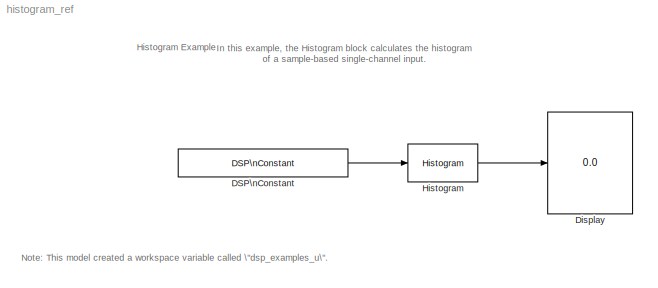
MODEL histogram_ref
KIND model
CONFIG AbsTol = auto
CONFIG FixedStep = auto
CONFIG MaxStep = auto
CONFIG MinStep = auto
CONFIG PostLoadFcn = set_param(gcs,'SimulationCommand','Update')
CONFIG PreLoadFcn = dsp_examples_u = [0 -2 6 -12 2 5 4 3 0 4 3 -2 -3 -2 -9]';
CONFIG RelTol = 1e-3
CONFIG Solver = FixedStepDiscrete
CONFIG SolverMode = Auto
CONFIG StartTime = 0.0
CONFIG StopTime = 5
BLOCK [Reference] DSP\nConstant  REF=dspsrcs3/DSP\nConstant
  FramebasedOutput = off
  InterpretAs1D = off
  Ports = [0, 1]
  SampleMode = Discrete
  SourceBlock = dspsrcs3/DSP\nConstant
  SourceType = DSP Constant
  Ts = 1
  Value = [0 -2 6 -12 2 5 4 3 0 4 3 -2 -3 -2 -9]'
BLOCK [Display] Display
  Decimation = 1
  Floating = off
  Format = short
  Ports = [1]
  SampleTime = -1
BLOCK [Reference] Histogram  REF=dspstat3/Histogram
  Ports = [1, 1]
  SourceBlock = dspstat3/Histogram
  SourceType = Histogram
  nbins = 5
  normalized = off
  reset = on
  run = off
  umax = 10
  umin = -10
LINE DSP\nConstant:1 -> Histogram:1
LINE Histogram:1 -> Display:1
